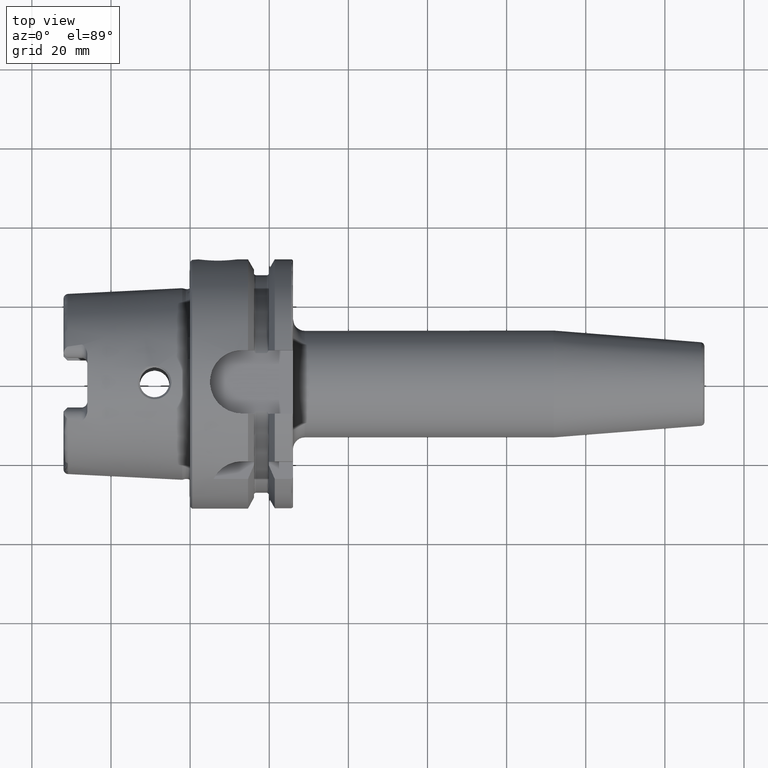
[diagram: clean part render]
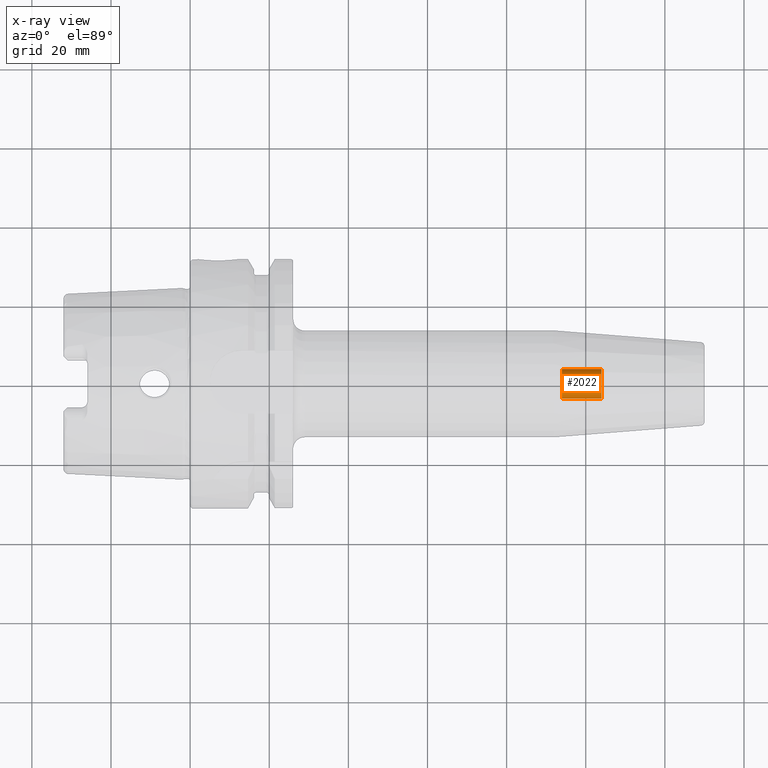
[diagram: x-ray — body ghosted, one internal face saturated and labeled with its STEP entity id]
A machine part, top view, then the same camera in x-ray: the body is ghosted and one INTERNAL B-rep face — a face not visible from any outside direction — is saturated and labeled: STEP entity #2022.
In plain terms, the highlighted cylindrical surface (bore or boss wall) has radius 3.775 mm, axis along (1, 0, 0).
Its self-contained STEP definition (entity closure, byte-faithful):
#184=CYLINDRICAL_SURFACE('',#2192,3.77500000000001);
#229=FACE_OUTER_BOUND('',#354,.T.);
#354=EDGE_LOOP('',(#1422,#1423,#1424,#1425));
#487=LINE('',#3134,#597);
#597=VECTOR('',#2515,3.77500000000001);
#713=CIRCLE('',#2193,3.77500000000001);
#714=CIRCLE('',#2194,3.775);
#851=VERTEX_POINT('',#3131);
#852=VERTEX_POINT('',#3133);
#1071=EDGE_CURVE('',#851,#851,#713,.T.);
#1072=EDGE_CURVE('',#851,#852,#487,.T.);
#1073=EDGE_CURVE('',#852,#852,#714,.T.);
#1422=ORIENTED_EDGE('',*,*,#1071,.T.);
#1423=ORIENTED_EDGE('',*,*,#1072,.T.);
#1424=ORIENTED_EDGE('',*,*,#1073,.F.);
#1425=ORIENTED_EDGE('',*,*,#1072,.F.);
#2022=ADVANCED_FACE('',(#229),#184,.F.);
#2192=AXIS2_PLACEMENT_3D('',#3130,#2511,#2512);
#2193=AXIS2_PLACEMENT_3D('',#3132,#2513,#2514);
#2194=AXIS2_PLACEMENT_3D('',#3135,#2516,#2517);
#2511=DIRECTION('center_axis',(1.,0.,0.));
#2512=DIRECTION('ref_axis',(0.,1.,0.));
#2513=DIRECTION('center_axis',(1.,0.,0.));
#2514=DIRECTION('ref_axis',(0.,0.,-1.));
#2515=DIRECTION('',(-1.,0.,0.));
#2516=DIRECTION('center_axis',(1.,0.,0.));
#2517=DIRECTION('ref_axis',(0.,0.,-1.));
#3130=CARTESIAN_POINT('Origin',(99.,0.,0.));
#3131=CARTESIAN_POINT('',(104.,-3.77500000000001,-4.62304166678127E-16));
#3132=CARTESIAN_POINT('Origin',(104.,0.,0.));
#3133=CARTESIAN_POINT('',(94.,-3.77500000000001,-4.62304166678127E-16));
#3134=CARTESIAN_POINT('',(99.,-3.77500000000001,-4.62304166678127E-16));
#3135=CARTESIAN_POINT('Origin',(94.,0.,0.));